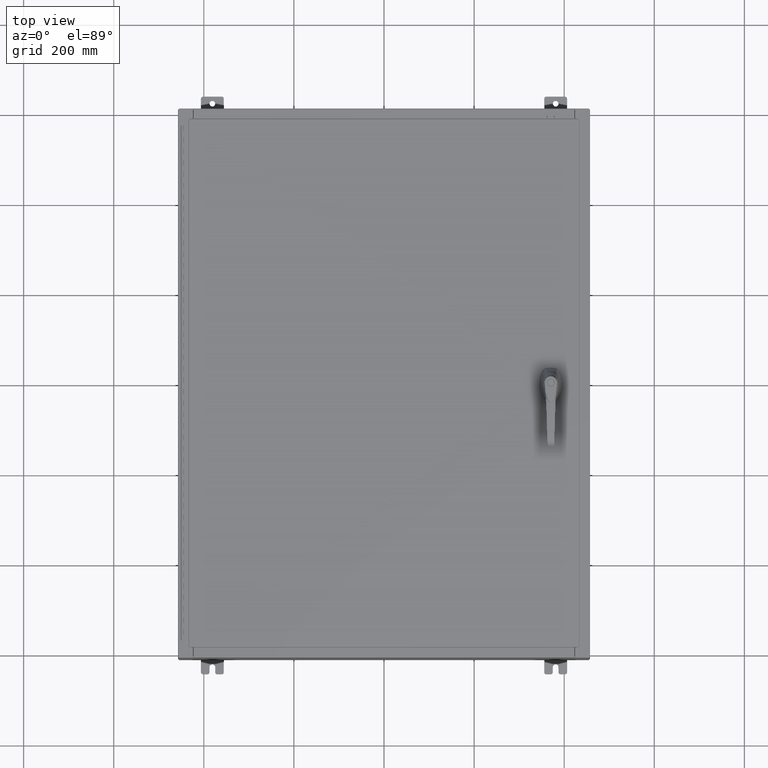
[diagram: clean part render]
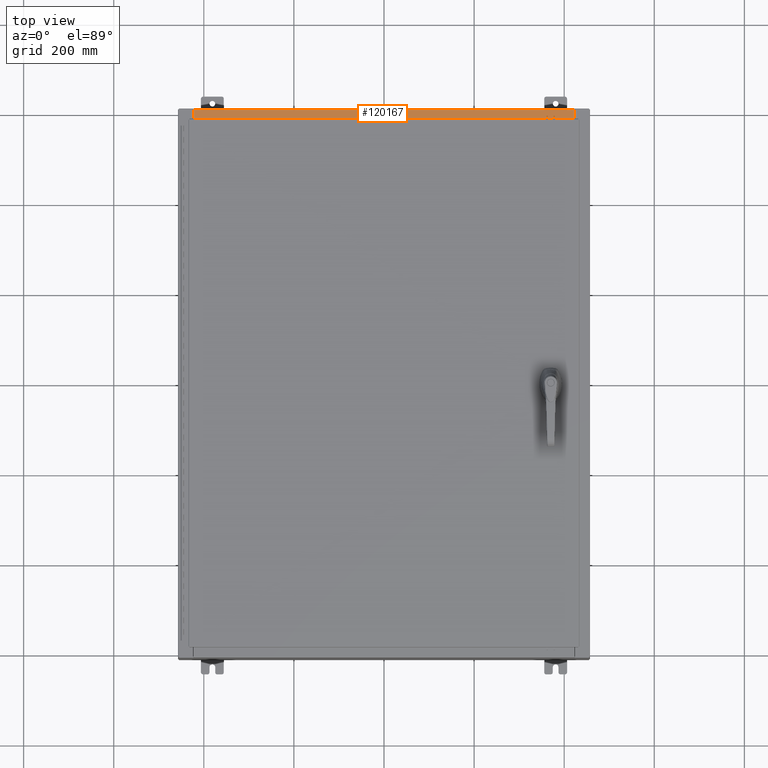
[diagram: same view with one face highlighted and labeled with its STEP entity id]
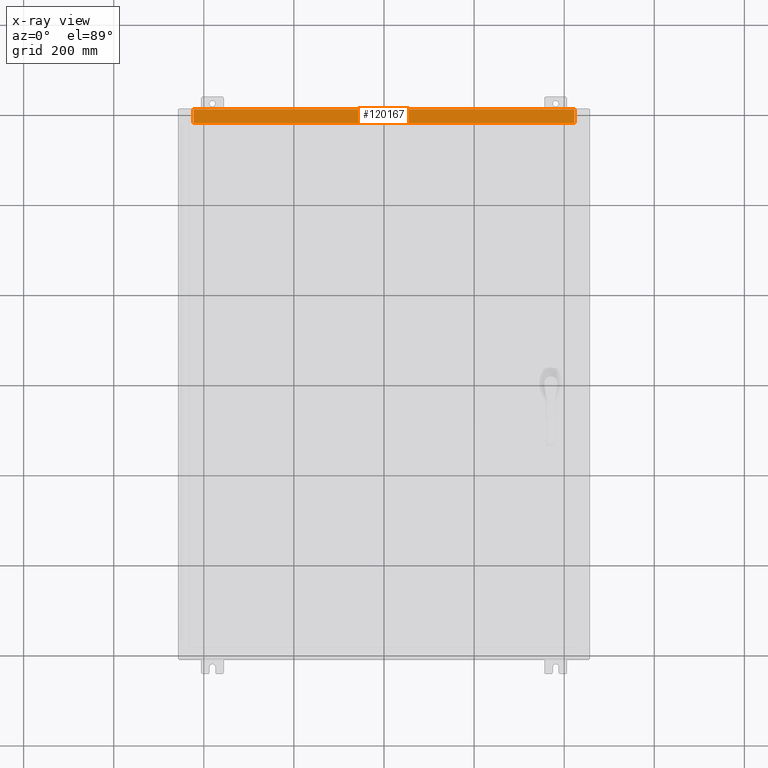
[diagram: x-ray of the same camera — body ghosted, the highlighted face saturated]
A machine part, top view. The second image highlights one B-rep face of the part: STEP entity #120167.
The next image is the same camera in x-ray: the body ghosted, the highlighted face saturated — about 0% of this face is hidden behind the body in this view.
In plain terms, the highlighted planar face has unit normal (0, 0, 1).
Its self-contained STEP definition (entity closure, byte-faithful):
#3108 = DIRECTION ( 'NONE',  ( -1.000000000000000000, 0.0000000000000000000, 0.0000000000000000000 ) ) ;
#12058 = LINE ( 'NONE', #121562, #119052 ) ;
#13978 = CARTESIAN_POINT ( 'NONE',  ( 16.63720000000000400, -1.300299999999999800, 6.000000000000003600 ) ) ;
#16655 = AXIS2_PLACEMENT_3D ( 'NONE', #48558, #121123, #59013 ) ;
#18561 = CARTESIAN_POINT ( 'NONE',  ( -16.63719999999999600, -0.08769999999999972300, 5.999999999999999100 ) ) ;
#19573 = CARTESIAN_POINT ( 'NONE',  ( -5.156971724347648400E-018, -0.08769999999999972300, 5.999999999999999100 ) ) ;
#25684 = ORIENTED_EDGE ( 'NONE', *, *, #114891, .F. ) ;
#48558 = CARTESIAN_POINT ( 'NONE',  ( -2.276882898771239300E-018, 1.610972251716581800E-014, 5.999999999999999100 ) ) ;
#50486 = EDGE_CURVE ( 'NONE', #108719, #79819, #60905, .T. ) ;
#52634 = VECTOR ( 'NONE', #133762, 39.37007874015748100 ) ;
#53147 = CARTESIAN_POINT ( 'NONE',  ( -16.63719999999999600, -1.287299999999998600, 6.000000000000002700 ) ) ;
#55379 = CARTESIAN_POINT ( 'NONE',  ( 16.63720000000000400, -0.08769999999999948700, 5.999999999999999100 ) ) ;
#57633 = VECTOR ( 'NONE', #3108, 39.37007874015748100 ) ;
#59013 = DIRECTION ( 'NONE',  ( 0.0000000000000000000, -1.000000000000000000, 2.674785894579892700E-015 ) ) ;
#60815 = ORIENTED_EDGE ( 'NONE', *, *, #121373, .T. ) ;
#60905 = LINE ( 'NONE', #65196, #57633 ) ;
#65196 = CARTESIAN_POINT ( 'NONE',  ( 16.63720000000000400, -1.287299999999999400, 6.000000000000001800 ) ) ;
#74767 = VECTOR ( 'NONE', #86531, 39.37007874015748100 ) ;
#76353 = VERTEX_POINT ( 'NONE', #18561 ) ;
#77986 = LINE ( 'NONE', #13978, #74767 ) ;
#79819 = VERTEX_POINT ( 'NONE', #53147 ) ;
#82075 = FACE_OUTER_BOUND ( 'NONE', #88390, .T. ) ;
#86531 = DIRECTION ( 'NONE',  ( -0.0000000000000000000, -1.000000000000000000, 3.566381192773190000E-015 ) ) ;
#86840 = ORIENTED_EDGE ( 'NONE', *, *, #50486, .F. ) ;
#88390 = EDGE_LOOP ( 'NONE', ( #130825, #86840, #25684, #60815 ) ) ;
#89860 = PLANE ( 'NONE',  #16655 ) ;
#92827 = CARTESIAN_POINT ( 'NONE',  ( 16.63720000000000400, -1.287299999999999400, 6.000000000000003600 ) ) ;
#101178 = DIRECTION ( 'NONE',  ( -0.0000000000000000000, 1.000000000000000000, -2.674785894579892700E-015 ) ) ;
#108719 = VERTEX_POINT ( 'NONE', #92827 ) ;
#114352 = LINE ( 'NONE', #19573, #52634 ) ;
#114891 = EDGE_CURVE ( 'NONE', #132418, #108719, #77986, .T. ) ;
#119052 = VECTOR ( 'NONE', #101178, 39.37007874015748100 ) ;
#120167 = ADVANCED_FACE ( 'NONE', ( #82075 ), #89860, .T. ) ;
#121123 = DIRECTION ( 'NONE',  ( 0.0000000000000000000, 2.674785894579892700E-015, 1.000000000000000000 ) ) ;
#121373 = EDGE_CURVE ( 'NONE', #132418, #76353, #114352, .T. ) ;
#121562 = CARTESIAN_POINT ( 'NONE',  ( -16.63719999999999600, -0.07469999999999973900, 5.999999999999999100 ) ) ;
#124028 = EDGE_CURVE ( 'NONE', #79819, #76353, #12058, .T. ) ;
#130825 = ORIENTED_EDGE ( 'NONE', *, *, #124028, .F. ) ;
#132418 = VERTEX_POINT ( 'NONE', #55379 ) ;
#133762 = DIRECTION ( 'NONE',  ( -1.000000000000000000, 3.284023746380717400E-017, -8.784060394284559800E-032 ) ) ;